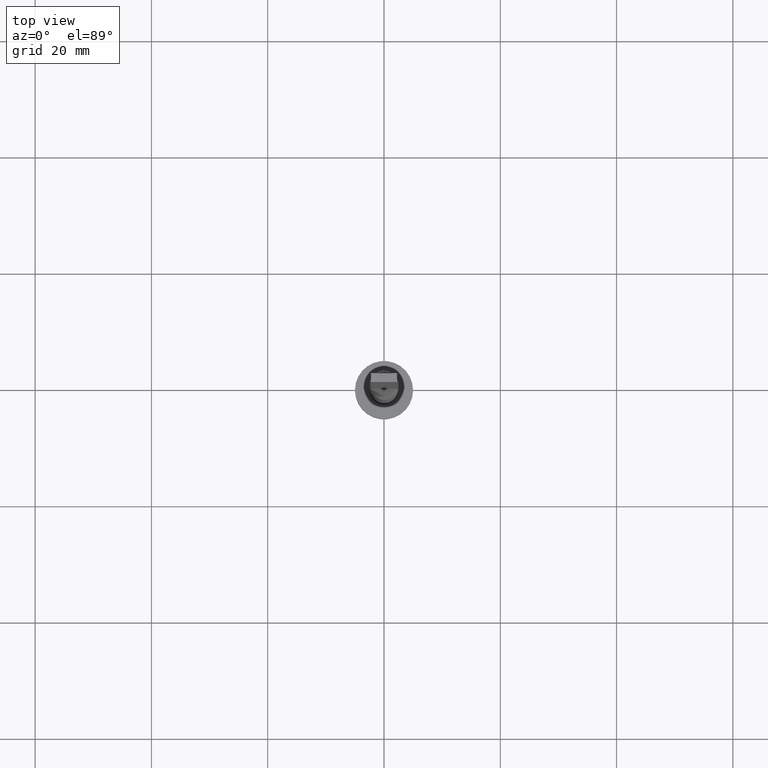
[diagram: clean part render]
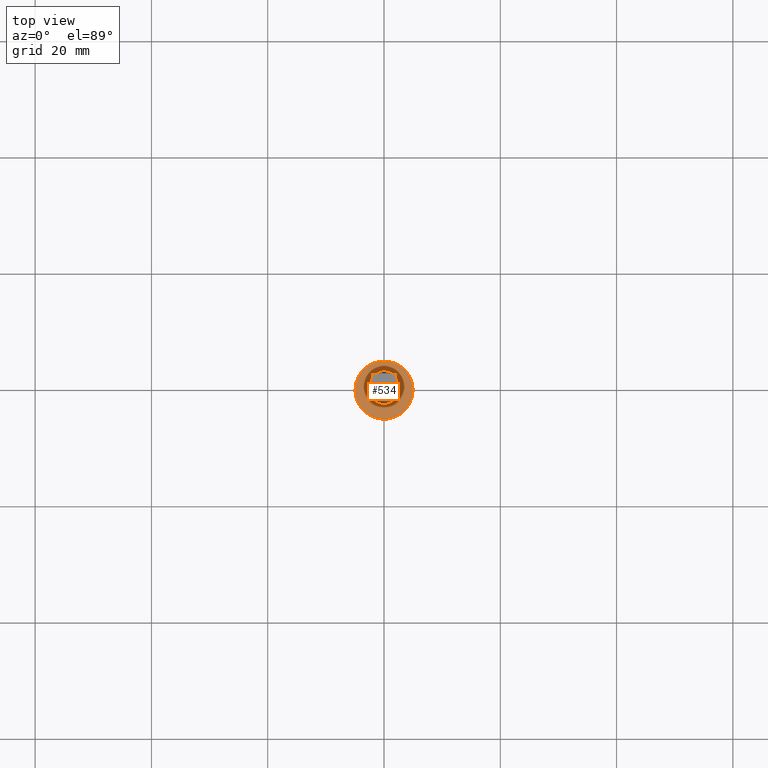
[diagram: same view with one face highlighted and labeled with its STEP entity id]
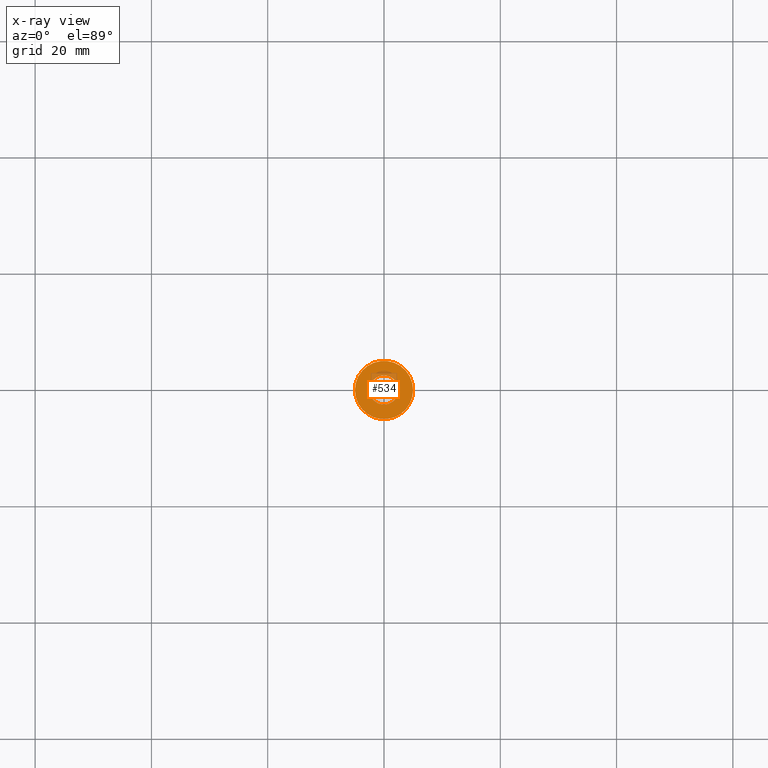
[diagram: x-ray of the same camera — body ghosted, the highlighted face saturated]
A machine part, top view. The second image highlights one B-rep face of the part: STEP entity #534.
The next image is the same camera in x-ray: the body ghosted, the highlighted face saturated — about 8% of this face is hidden behind the body in this view.
In plain terms, the highlighted planar face has unit normal (0, 0, 1).
Its self-contained STEP definition (entity closure, byte-faithful):
#6 = ORIENTED_EDGE ( 'NONE', *, *, #256, .T. ) ;
#53 = VERTEX_POINT ( 'NONE', #527 ) ;
#54 = DIRECTION ( 'NONE',  ( 0.000000000000000000, 0.000000000000000000, 1.000000000000000000 ) ) ;
#104 = DIRECTION ( 'NONE',  ( 0.000000000000000000, 0.000000000000000000, 1.000000000000000000 ) ) ;
#124 = EDGE_LOOP ( 'NONE', ( #281, #462 ) ) ;
#141 = DIRECTION ( 'NONE',  ( 0.000000000000000000, 0.000000000000000000, 1.000000000000000000 ) ) ;
#150 = DIRECTION ( 'NONE',  ( 0.000000000000000000, 0.000000000000000000, 1.000000000000000000 ) ) ;
#162 = CIRCLE ( 'NONE', #509, 5.000000000000000000 ) ;
#213 = DIRECTION ( 'NONE',  ( 0.000000000000000000, 0.000000000000000000, 1.000000000000000000 ) ) ;
#230 = CIRCLE ( 'NONE', #468, 2.500000000000000000 ) ;
#232 = CARTESIAN_POINT ( 'NONE',  ( -2.500000000000000000, 0.000000000000000000, 3.000000000000000000 ) ) ;
#243 = VERTEX_POINT ( 'NONE', #555 ) ;
#256 = EDGE_CURVE ( 'NONE', #53, #243, #162, .T. ) ;
#270 = DIRECTION ( 'NONE',  ( 1.000000000000000000, 0.000000000000000000, 0.000000000000000000 ) ) ;
#280 = DIRECTION ( 'NONE',  ( 1.000000000000000000, 0.000000000000000000, 0.000000000000000000 ) ) ;
#281 = ORIENTED_EDGE ( 'NONE', *, *, #309, .F. ) ;
#284 = CARTESIAN_POINT ( 'NONE',  ( 2.500000000000000000, 3.061616997868383141E-16, 3.000000000000000000 ) ) ;
#288 = DIRECTION ( 'NONE',  ( 1.000000000000000000, 0.000000000000000000, -0.000000000000000000 ) ) ;
#296 = EDGE_CURVE ( 'NONE', #513, #320, #230, .T. ) ;
#309 = EDGE_CURVE ( 'NONE', #320, #513, #345, .T. ) ;
#318 = DIRECTION ( 'NONE',  ( 1.000000000000000000, 0.000000000000000000, 0.000000000000000000 ) ) ;
#320 = VERTEX_POINT ( 'NONE', #232 ) ;
#345 = CIRCLE ( 'NONE', #498, 2.500000000000000000 ) ;
#370 = CARTESIAN_POINT ( 'NONE',  ( 0.000000000000000000, 0.000000000000000000, 3.000000000000000000 ) ) ;
#375 = ORIENTED_EDGE ( 'NONE', *, *, #404, .T. ) ;
#381 = AXIS2_PLACEMENT_3D ( 'NONE', #497, #213, #288 ) ;
#404 = EDGE_CURVE ( 'NONE', #243, #53, #451, .T. ) ;
#405 = FACE_BOUND ( 'NONE', #124, .T. ) ;
#451 = CIRCLE ( 'NONE', #522, 5.000000000000000000 ) ;
#460 = PLANE ( 'NONE',  #381 ) ;
#462 = ORIENTED_EDGE ( 'NONE', *, *, #296, .F. ) ;
#463 = DIRECTION ( 'NONE',  ( 1.000000000000000000, 0.000000000000000000, 0.000000000000000000 ) ) ;
#468 = AXIS2_PLACEMENT_3D ( 'NONE', #562, #104, #280 ) ;
#491 = CARTESIAN_POINT ( 'NONE',  ( 0.000000000000000000, 0.000000000000000000, 3.000000000000000000 ) ) ;
#497 = CARTESIAN_POINT ( 'NONE',  ( 0.000000000000000000, 0.000000000000000000, 3.000000000000000000 ) ) ;
#498 = AXIS2_PLACEMENT_3D ( 'NONE', #561, #150, #318 ) ;
#509 = AXIS2_PLACEMENT_3D ( 'NONE', #370, #141, #270 ) ;
#513 = VERTEX_POINT ( 'NONE', #284 ) ;
#522 = AXIS2_PLACEMENT_3D ( 'NONE', #491, #54, #463 ) ;
#527 = CARTESIAN_POINT ( 'NONE',  ( 5.000000000000000000, 6.123233995736766282E-16, 3.000000000000000000 ) ) ;
#534 = ADVANCED_FACE ( 'NONE', ( #405, #548 ), #460, .T. ) ;
#548 = FACE_OUTER_BOUND ( 'NONE', #551, .T. ) ;
#551 = EDGE_LOOP ( 'NONE', ( #375, #6 ) ) ;
#555 = CARTESIAN_POINT ( 'NONE',  ( -5.000000000000000000, 0.000000000000000000, 3.000000000000000000 ) ) ;
#561 = CARTESIAN_POINT ( 'NONE',  ( 0.000000000000000000, 0.000000000000000000, 3.000000000000000000 ) ) ;
#562 = CARTESIAN_POINT ( 'NONE',  ( 0.000000000000000000, 0.000000000000000000, 3.000000000000000000 ) ) ;